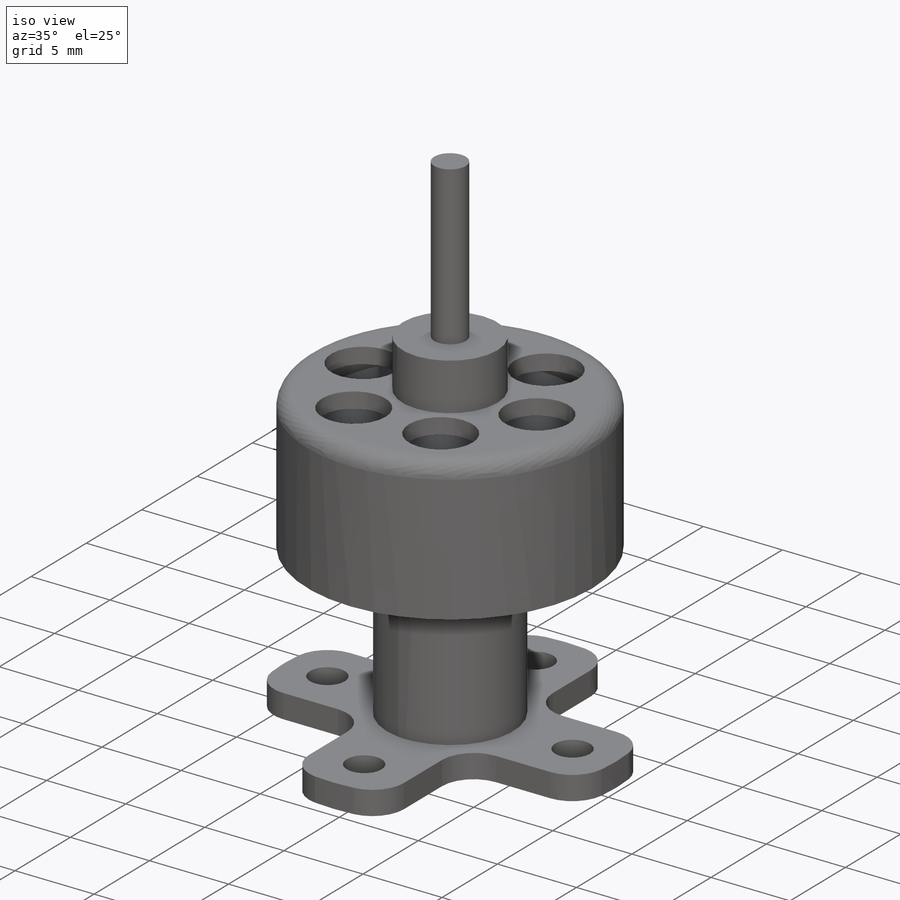
[diagram: iso view]
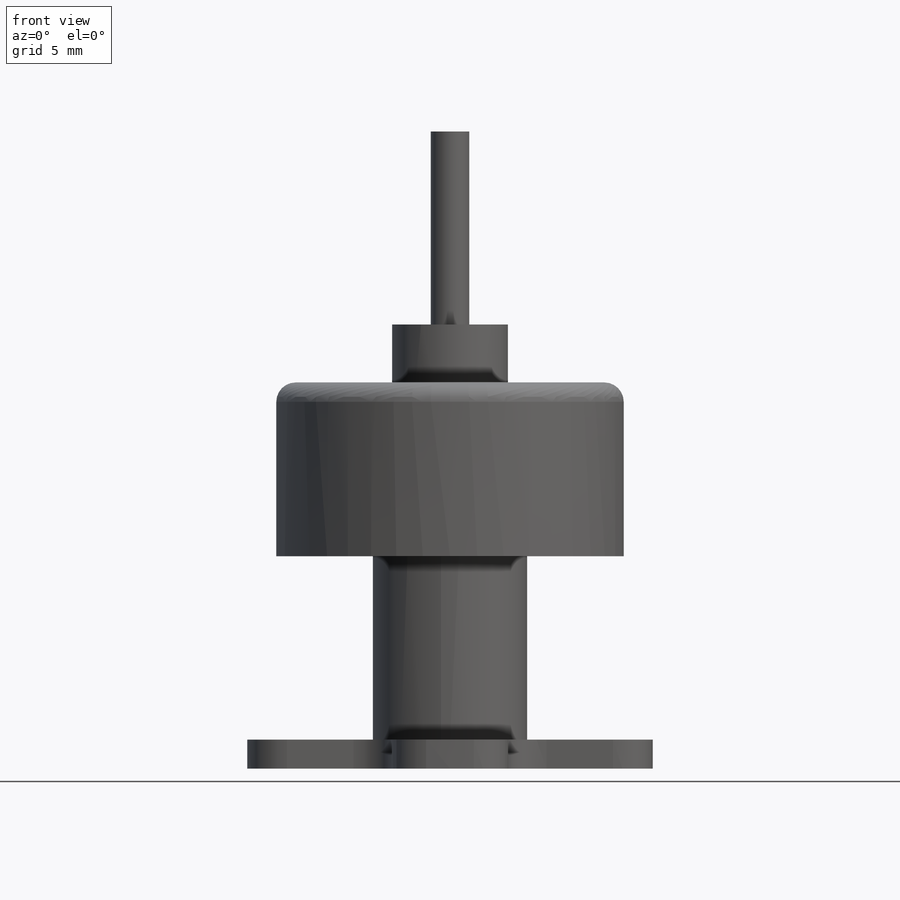
[diagram: front view]
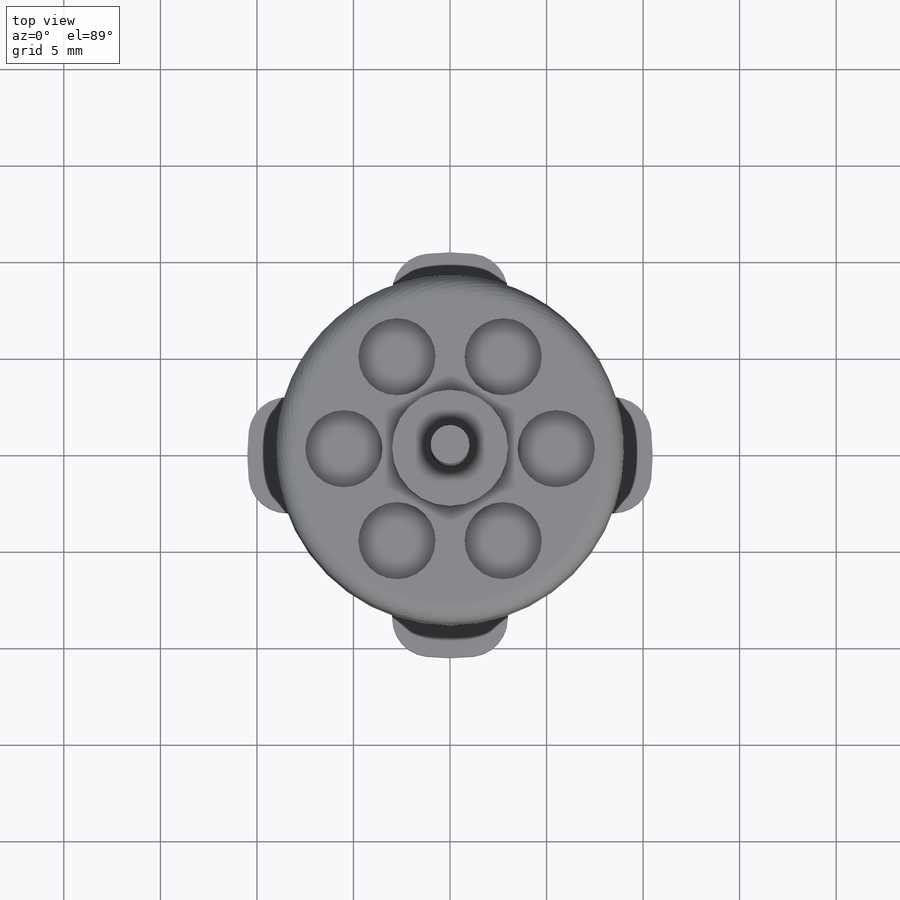
[diagram: top view]
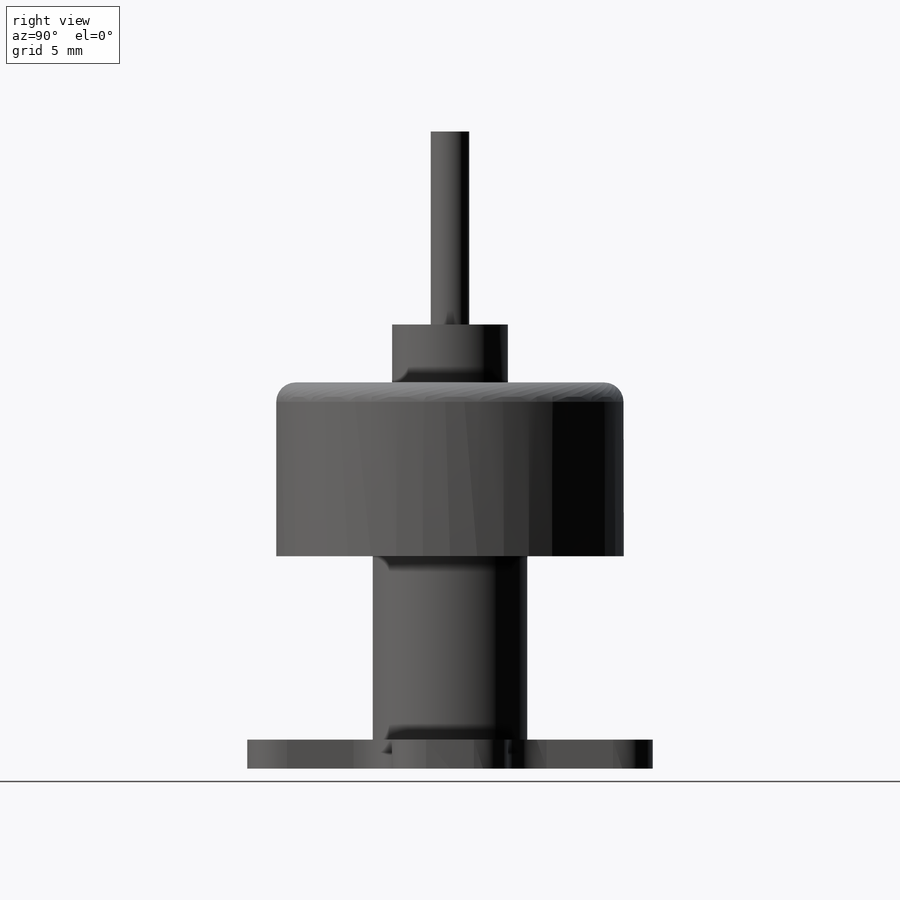
[diagram: right view]
SOLIDWORKS PART (.sldprt)
format: sldprt  version: not decoded by parser v0  size: 346,624 bytes
history: native  units: mm
features: sketch x8, extrude x5, cut_extrude x3, fillet x2, material x1 (+13 scaffold rows collapsed)
feature tree (32):
  scaffold x13  (default folders/planes/origin — collapsed)
  material  "Material <not specified>"
  sketch  "Sketch1"  dims[D1=21.0mm D2=6.0mm D3=6.0mm]
  extrude  "Boss-Extrude1"  Depth=1.5mm
  sketch  "Sketch2"  dims[D1=2.2mm D2=7.75mm D3=4.0]
  cut_extrude  "Cut-Extrude1"  [1 undecoded]
  fillet  "Fillet1"  Radius=2mm
  sketch  "Sketch3"  dims[D1=8.0mm]
  extrude  "Boss-Extrude2"  Depth=9.5mm
  sketch  "Sketch4"  dims[D1=18.0mm]
  extrude  "Boss-Extrude3"  Depth=9mm
  fillet  "Fillet2"  Radius=1mm
  sketch  "Sketch5"  dims[D1=6.0mm]
  extrude  "Boss-Extrude4"  Depth=3mm
  sketch  "Sketch6"  dims[D1=2.0mm]
  extrude  "Boss-Extrude5"  Depth=10mm
  sketch  "Sketch7"  dims[D1=4.0mm D2=5.5mm D3=6.0]
  cut_extrude  "Cut-Extrude2"  Depth=1mm
  sketch  "Sketch8"
  cut_extrude  "Cut-Extrude3"  Depth=1mm
decode coverage: 16 of 18 modeling features carry decoded parameters
note: 1 parameter value undecoded
note: suppression state not decoded; provenance and decode notes live in map.json
